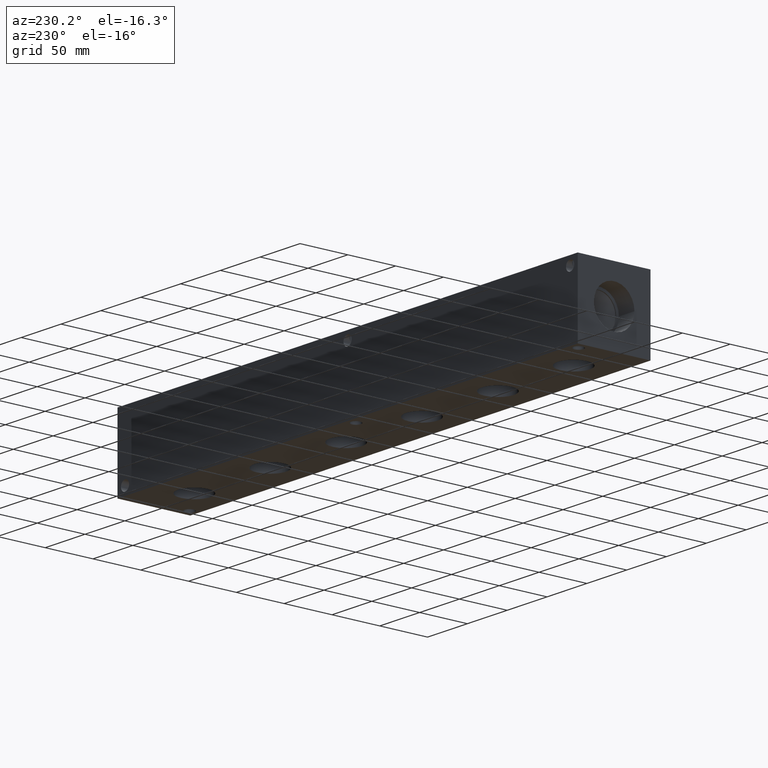
[diagram: clean part render]
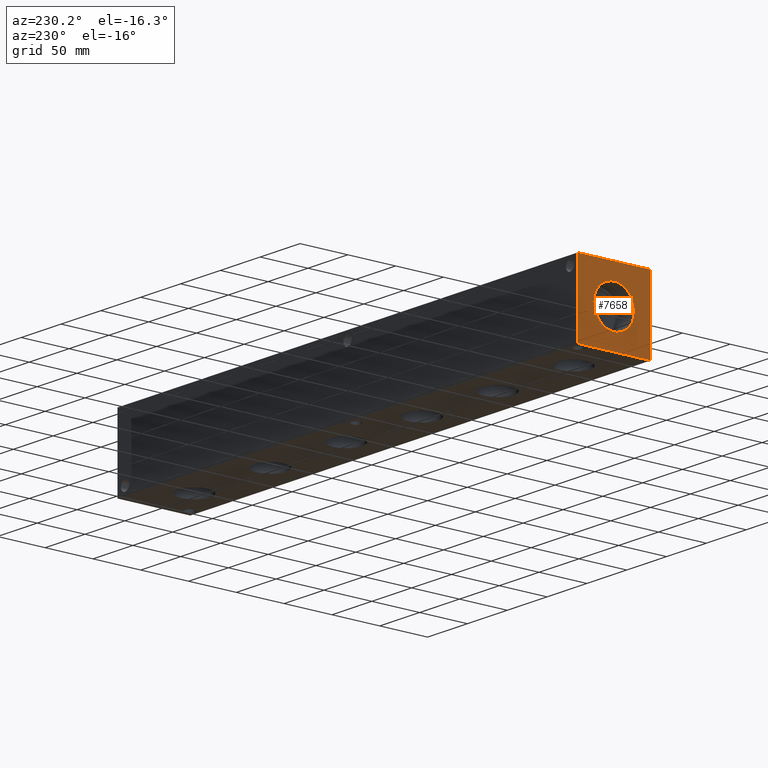
[diagram: same view with one face highlighted and labeled with its STEP entity id]
A machine part, auxiliary view. The second image highlights one B-rep face of the part: STEP entity #7658.
In plain terms, the highlighted planar face has unit normal (-1, 0, 0).
Its self-contained STEP definition (entity closure, byte-faithful):
#194=CIRCLE('',#8087,21.2344);
#195=CIRCLE('',#8088,21.2344);
#248=FACE_BOUND('',#1326,.T.);
#495=PLANE('',#8090);
#884=FACE_OUTER_BOUND('',#1325,.T.);
#1325=EDGE_LOOP('',(#6819,#6820,#6821,#6822));
#1326=EDGE_LOOP('',(#6823,#6824));
#1634=LINE('',#11792,#2360);
#2066=LINE('',#13090,#2792);
#2067=LINE('',#13091,#2793);
#2068=LINE('',#13092,#2794);
#2360=VECTOR('',#8534,10.);
#2792=VECTOR('',#9642,10.);
#2793=VECTOR('',#9643,10.);
#2794=VECTOR('',#9644,10.);
#3308=VERTEX_POINT('',#11785);
#3311=VERTEX_POINT('',#11790);
#3708=VERTEX_POINT('',#13080);
#3709=VERTEX_POINT('',#13081);
#3710=VERTEX_POINT('',#13088);
#3711=VERTEX_POINT('',#13089);
#4182=EDGE_CURVE('',#3311,#3308,#1634,.T.);
#4754=EDGE_CURVE('',#3708,#3709,#194,.T.);
#4755=EDGE_CURVE('',#3709,#3708,#195,.T.);
#4758=EDGE_CURVE('',#3710,#3711,#2066,.T.);
#4759=EDGE_CURVE('',#3711,#3308,#2067,.T.);
#4760=EDGE_CURVE('',#3710,#3311,#2068,.T.);
#6819=ORIENTED_EDGE('',*,*,#4758,.T.);
#6820=ORIENTED_EDGE('',*,*,#4759,.T.);
#6821=ORIENTED_EDGE('',*,*,#4182,.F.);
#6822=ORIENTED_EDGE('',*,*,#4760,.F.);
#6823=ORIENTED_EDGE('',*,*,#4754,.T.);
#6824=ORIENTED_EDGE('',*,*,#4755,.T.);
#7658=ADVANCED_FACE('',(#884,#248),#495,.T.);
#8087=AXIS2_PLACEMENT_3D('',#13082,#9632,#9633);
#8088=AXIS2_PLACEMENT_3D('',#13083,#9634,#9635);
#8090=AXIS2_PLACEMENT_3D('',#13087,#9640,#9641);
#8534=DIRECTION('',(0.,-1.,0.));
#9632=DIRECTION('center_axis',(1.,0.,0.));
#9633=DIRECTION('ref_axis',(0.,1.,0.));
#9634=DIRECTION('center_axis',(1.,0.,0.));
#9635=DIRECTION('ref_axis',(0.,1.,0.));
#9640=DIRECTION('center_axis',(-1.,0.,0.));
#9641=DIRECTION('ref_axis',(0.,-1.,0.));
#9642=DIRECTION('',(0.,-1.,0.));
#9643=DIRECTION('',(0.,0.,1.));
#9644=DIRECTION('',(0.,0.,1.));
#11785=CARTESIAN_POINT('',(0.,0.,76.2));
#11790=CARTESIAN_POINT('',(0.,76.2,76.2));
#11792=CARTESIAN_POINT('',(0.,76.2,76.2));
#13080=CARTESIAN_POINT('',(0.,59.3344,38.1));
#13081=CARTESIAN_POINT('',(0.,16.8656,38.1));
#13082=CARTESIAN_POINT('Origin',(0.,38.1,38.1));
#13083=CARTESIAN_POINT('Origin',(0.,38.1,38.1));
#13087=CARTESIAN_POINT('Origin',(0.,76.2,0.));
#13088=CARTESIAN_POINT('',(0.,76.2,0.));
#13089=CARTESIAN_POINT('',(0.,0.,0.));
#13090=CARTESIAN_POINT('',(0.,76.2,0.));
#13091=CARTESIAN_POINT('',(0.,0.,0.));
#13092=CARTESIAN_POINT('',(0.,76.2,0.));